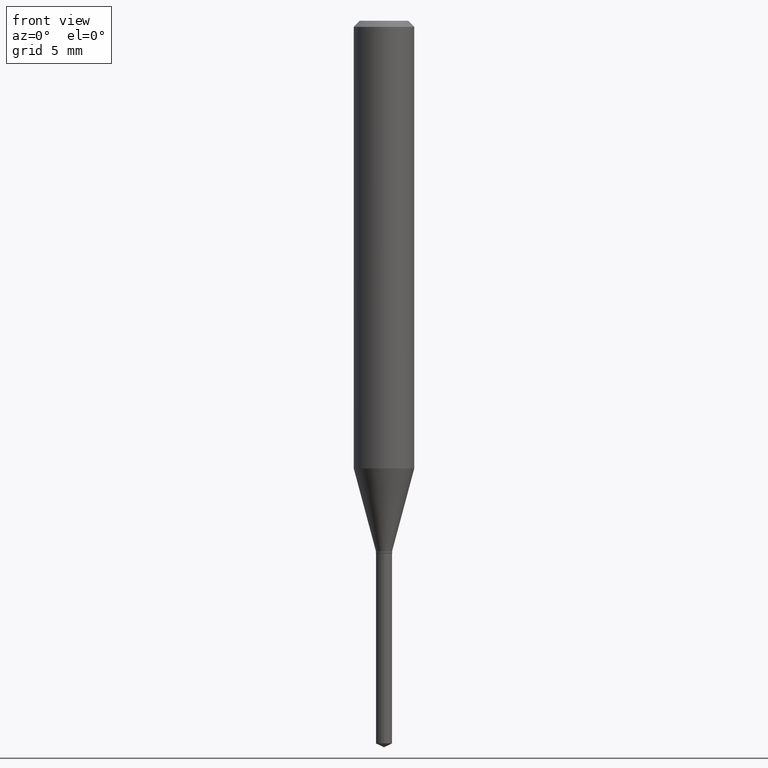
[diagram: clean part render]
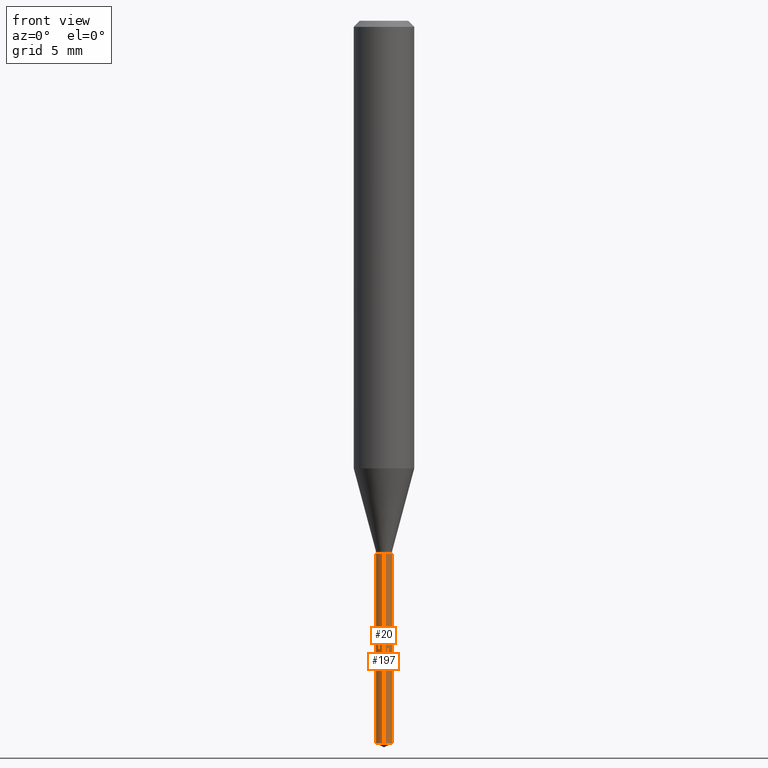
[diagram: same view with one multi-face feature highlighted, each face labeled with its STEP entity id]
A machine part, front view. The highlighted faces form ONE feature: a constant-radius fillet chain: 2 tangent blend faces with common blend radius 0.4254 mm. The faces share edges in the B-rep.
Their STEP definitions:
[1] entity #197 (Cylinder):
#19 = VERTEX_POINT ( 'NONE', #322 ) ;
#44 = DIRECTION ( 'NONE',  ( -2.445399690415121530E-29, 3.491580316559632610E-15, 1.000000000000000000 ) ) ;
#55 = EDGE_CURVE ( 'NONE', #307, #291, #324, .T. ) ;
#63 = EDGE_CURVE ( 'NONE', #307, #19, #265, .T. ) ;
#65 = DIRECTION ( 'NONE',  ( -2.445399690415121810E-29, 3.491580316559632610E-15, 1.000000000000000000 ) ) ;
#66 = AXIS2_PLACEMENT_3D ( 'NONE', #452, #111, #153 ) ;
#81 = CARTESIAN_POINT ( 'NONE',  ( 2.690015686803650369E-29, -3.840629472727460101E-15, -1.100000000000000089 ) ) ;
#111 = DIRECTION ( 'NONE',  ( -2.445399690415121530E-29, 3.491580316559632610E-15, 1.000000000000000000 ) ) ;
#112 = VECTOR ( 'NONE', #186, 39.37007874015748143 ) ;
#121 = VERTEX_POINT ( 'NONE', #419 ) ;
#130 = ORIENTED_EDGE ( 'NONE', *, *, #410, .T. ) ;
#141 = CARTESIAN_POINT ( 'NONE',  ( 3.649075393871284375E-29, -5.209990076120007424E-15, -1.492189346725903976 ) ) ;
#144 = FACE_OUTER_BOUND ( 'NONE', #277, .T. ) ;
#153 = DIRECTION ( 'NONE',  ( -6.982962677686266711E-15, -1.000000000000000000, 0.000000000000000000 ) ) ;
#186 = DIRECTION ( 'NONE',  ( -2.445399690415121810E-29, 3.491580316559632610E-15, 1.000000000000000000 ) ) ;
#190 = DIRECTION ( 'NONE',  ( -6.982962677686266711E-15, -1.000000000000000000, 0.000000000000000000 ) ) ;
#196 = ORIENTED_EDGE ( 'NONE', *, *, #63, .F. ) ;
#197 = ADVANCED_FACE ( 'NONE', ( #144 ), #298, .T. ) ;
#232 = EDGE_CURVE ( 'NONE', #19, #121, #447, .T. ) ;
#242 = ORIENTED_EDGE ( 'NONE', *, *, #232, .F. ) ;
#253 = LINE ( 'NONE', #404, #352 ) ;
#257 = AXIS2_PLACEMENT_3D ( 'NONE', #81, #44, #190 ) ;
#259 = DIRECTION ( 'NONE',  ( -6.982962677686266711E-15, -1.000000000000000000, 0.000000000000000000 ) ) ;
#265 = LINE ( 'NONE', #332, #112 ) ;
#277 = EDGE_LOOP ( 'NONE', ( #361, #130, #242, #196 ) ) ;
#291 = VERTEX_POINT ( 'NONE', #312 ) ;
#298 = CYLINDRICAL_SURFACE ( 'NONE', #66, 0.01675000000000000100 ) ;
#307 = VERTEX_POINT ( 'NONE', #429 ) ;
#312 = CARTESIAN_POINT ( 'NONE',  ( 1.190159082398532484E-16, 0.01674999999999478989, -1.492189346725903976 ) ) ;
#322 = CARTESIAN_POINT ( 'NONE',  ( -1.169646248512180594E-16, -0.01675000000000384168, -1.100000000000000089 ) ) ;
#324 = CIRCLE ( 'NONE', #488, 0.01675000000000000100 ) ;
#332 = CARTESIAN_POINT ( 'NONE',  ( -1.169646248512180594E-16, -0.01675000000000384168, -1.100000000000000089 ) ) ;
#352 = VECTOR ( 'NONE', #65, 39.37007874015748143 ) ;
#361 = ORIENTED_EDGE ( 'NONE', *, *, #55, .T. ) ;
#404 = CARTESIAN_POINT ( 'NONE',  ( 1.190159082398436835E-16, 0.01674999999999616032, -1.100000000000000089 ) ) ;
#410 = EDGE_CURVE ( 'NONE', #291, #121, #253, .T. ) ;
#419 = CARTESIAN_POINT ( 'NONE',  ( 1.190159082398533470E-16, 0.01674999999999616032, -1.100000000000000089 ) ) ;
#429 = CARTESIAN_POINT ( 'NONE',  ( -1.169646248512084451E-16, -0.01675000000000521211, -1.492189346725903976 ) ) ;
#447 = CIRCLE ( 'NONE', #257, 0.01675000000000000100 ) ;
#452 = CARTESIAN_POINT ( 'NONE',  ( 2.690015686803650369E-29, -3.840629472727460101E-15, -1.100000000000000089 ) ) ;
#488 = AXIS2_PLACEMENT_3D ( 'NONE', #141, #489, #259 ) ;
#489 = DIRECTION ( 'NONE',  ( -2.445399690415121530E-29, 3.491580316559632610E-15, 1.000000000000000000 ) ) ;
[2] entity #20 (Cylinder):
#19 = VERTEX_POINT ( 'NONE', #322 ) ;
#20 = ADVANCED_FACE ( 'NONE', ( #479 ), #135, .T. ) ;
#62 = DIRECTION ( 'NONE',  ( -2.445399690415121530E-29, 3.491580316559632610E-15, 1.000000000000000000 ) ) ;
#63 = EDGE_CURVE ( 'NONE', #307, #19, #265, .T. ) ;
#65 = DIRECTION ( 'NONE',  ( -2.445399690415121810E-29, 3.491580316559632610E-15, 1.000000000000000000 ) ) ;
#86 = ORIENTED_EDGE ( 'NONE', *, *, #459, .T. ) ;
#105 = ORIENTED_EDGE ( 'NONE', *, *, #63, .T. ) ;
#112 = VECTOR ( 'NONE', #186, 39.37007874015748143 ) ;
#114 = DIRECTION ( 'NONE',  ( -6.982962677686266711E-15, -1.000000000000000000, 0.000000000000000000 ) ) ;
#121 = VERTEX_POINT ( 'NONE', #419 ) ;
#128 = EDGE_CURVE ( 'NONE', #121, #19, #315, .T. ) ;
#135 = CYLINDRICAL_SURFACE ( 'NONE', #209, 0.01675000000000000100 ) ;
#175 = CARTESIAN_POINT ( 'NONE',  ( 2.690015686803650369E-29, -3.840629472727460101E-15, -1.100000000000000089 ) ) ;
#182 = DIRECTION ( 'NONE',  ( -2.445399690415121530E-29, 3.491580316559632610E-15, 1.000000000000000000 ) ) ;
#186 = DIRECTION ( 'NONE',  ( -2.445399690415121810E-29, 3.491580316559632610E-15, 1.000000000000000000 ) ) ;
#207 = DIRECTION ( 'NONE',  ( -6.982962677686266711E-15, -1.000000000000000000, 0.000000000000000000 ) ) ;
#209 = AXIS2_PLACEMENT_3D ( 'NONE', #286, #62, #207 ) ;
#220 = CARTESIAN_POINT ( 'NONE',  ( 3.649075393871284375E-29, -5.209990076120007424E-15, -1.492189346725903976 ) ) ;
#236 = CIRCLE ( 'NONE', #424, 0.01675000000000000100 ) ;
#249 = ORIENTED_EDGE ( 'NONE', *, *, #128, .F. ) ;
#253 = LINE ( 'NONE', #404, #352 ) ;
#255 = EDGE_LOOP ( 'NONE', ( #368, #86, #105, #249 ) ) ;
#260 = DIRECTION ( 'NONE',  ( -2.445399690415121530E-29, 3.491580316559632610E-15, 1.000000000000000000 ) ) ;
#265 = LINE ( 'NONE', #332, #112 ) ;
#286 = CARTESIAN_POINT ( 'NONE',  ( 2.690015686803650369E-29, -3.840629472727460101E-15, -1.100000000000000089 ) ) ;
#291 = VERTEX_POINT ( 'NONE', #312 ) ;
#299 = DIRECTION ( 'NONE',  ( -6.982962677686266711E-15, -1.000000000000000000, 0.000000000000000000 ) ) ;
#307 = VERTEX_POINT ( 'NONE', #429 ) ;
#312 = CARTESIAN_POINT ( 'NONE',  ( 1.190159082398532484E-16, 0.01674999999999478989, -1.492189346725903976 ) ) ;
#315 = CIRCLE ( 'NONE', #399, 0.01675000000000000100 ) ;
#322 = CARTESIAN_POINT ( 'NONE',  ( -1.169646248512180594E-16, -0.01675000000000384168, -1.100000000000000089 ) ) ;
#332 = CARTESIAN_POINT ( 'NONE',  ( -1.169646248512180594E-16, -0.01675000000000384168, -1.100000000000000089 ) ) ;
#352 = VECTOR ( 'NONE', #65, 39.37007874015748143 ) ;
#368 = ORIENTED_EDGE ( 'NONE', *, *, #410, .F. ) ;
#399 = AXIS2_PLACEMENT_3D ( 'NONE', #175, #182, #114 ) ;
#404 = CARTESIAN_POINT ( 'NONE',  ( 1.190159082398436835E-16, 0.01674999999999616032, -1.100000000000000089 ) ) ;
#410 = EDGE_CURVE ( 'NONE', #291, #121, #253, .T. ) ;
#419 = CARTESIAN_POINT ( 'NONE',  ( 1.190159082398533470E-16, 0.01674999999999616032, -1.100000000000000089 ) ) ;
#424 = AXIS2_PLACEMENT_3D ( 'NONE', #220, #260, #299 ) ;
#429 = CARTESIAN_POINT ( 'NONE',  ( -1.169646248512084451E-16, -0.01675000000000521211, -1.492189346725903976 ) ) ;
#459 = EDGE_CURVE ( 'NONE', #291, #307, #236, .T. ) ;
#479 = FACE_OUTER_BOUND ( 'NONE', #255, .T. ) ;